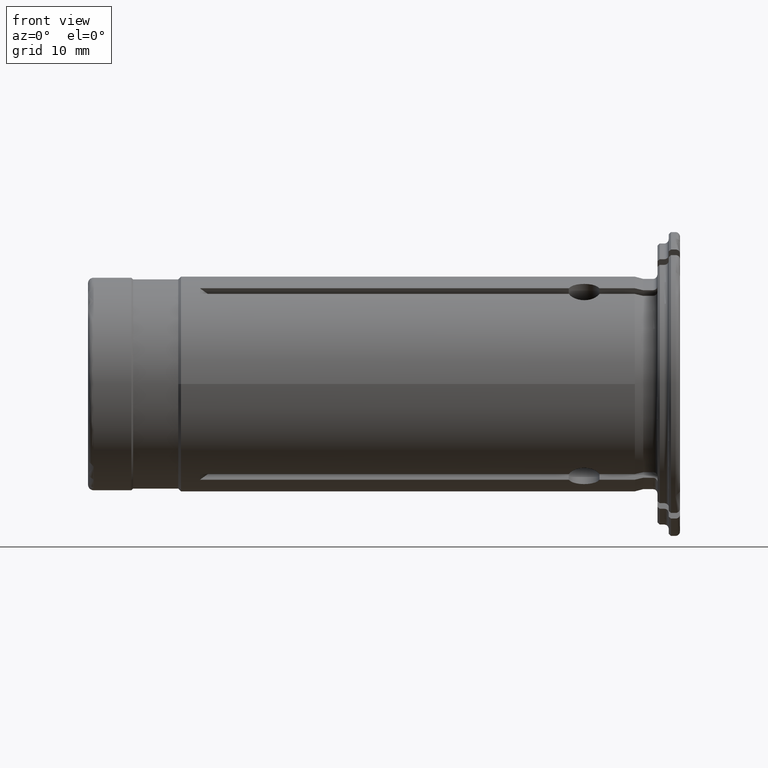
[diagram: clean part render]
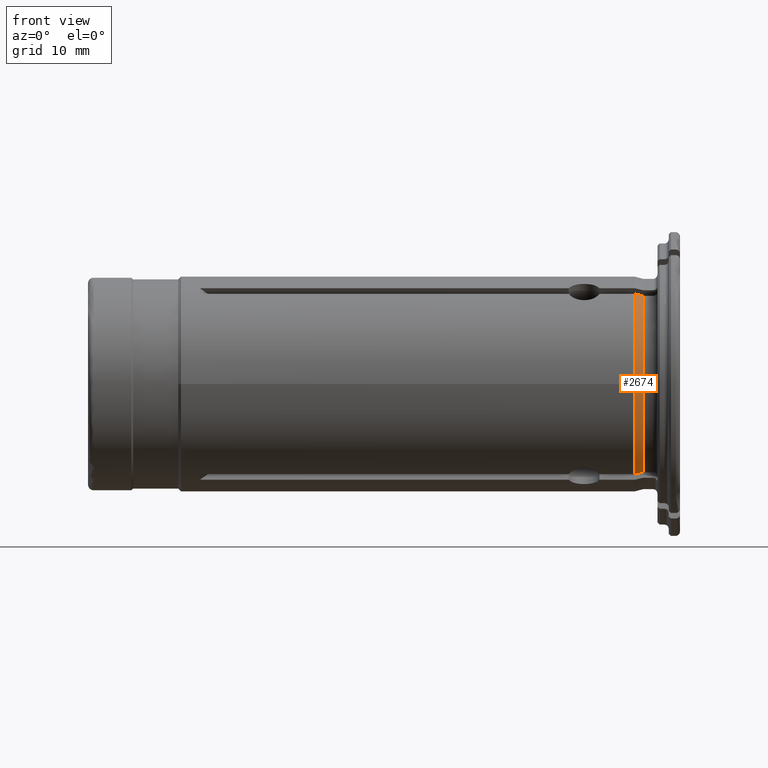
[diagram: same view with one face highlighted and labeled with its STEP entity id]
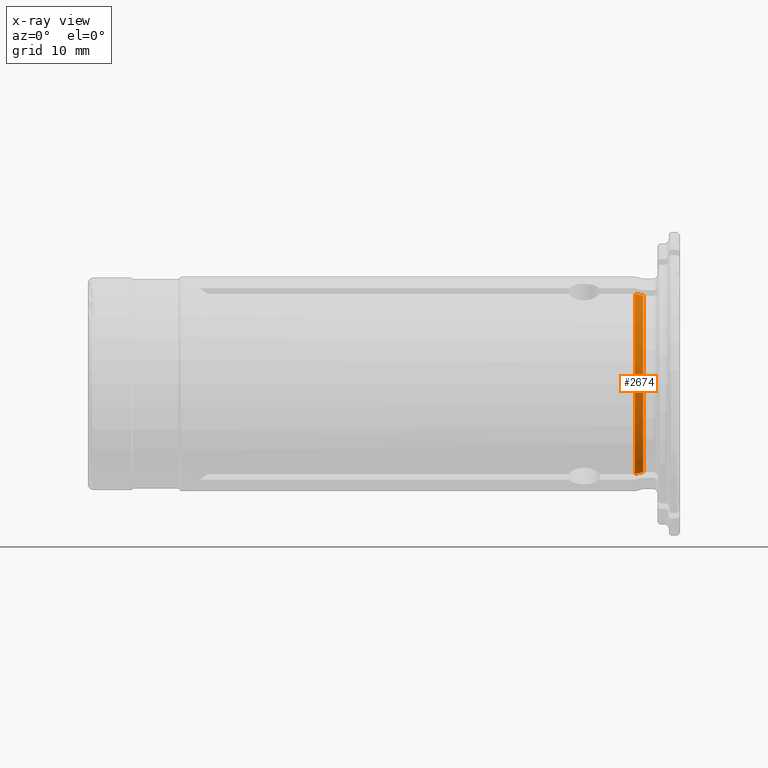
[diagram: x-ray of the same camera — body ghosted, the highlighted face saturated]
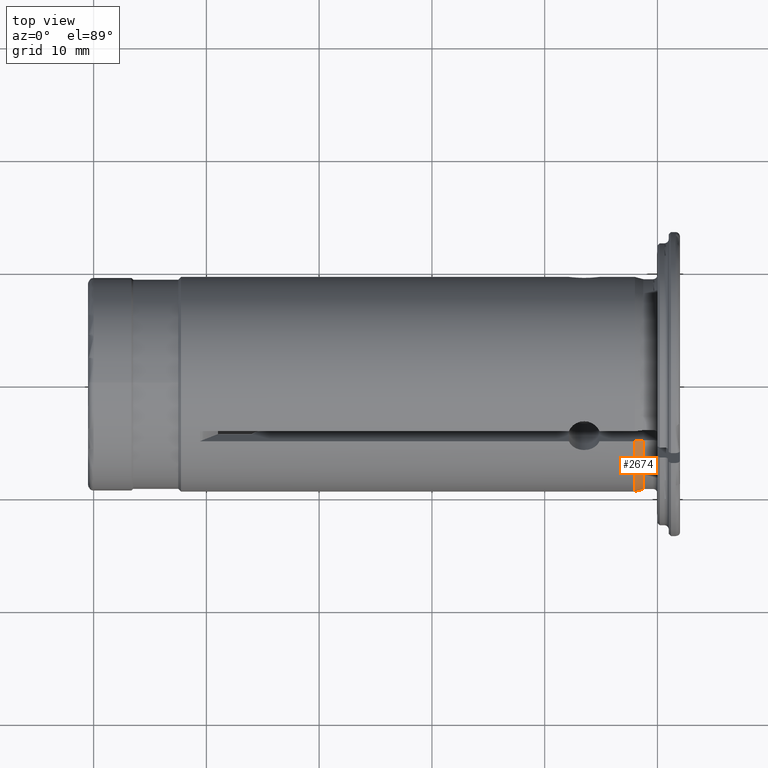
[diagram: same view with one face highlighted and labeled with its STEP entity id]
A machine part, front view. The second image highlights one B-rep face of the part: STEP entity #2674.
The next image is the same camera in x-ray: the body ghosted, the highlighted face saturated — about 0% of this face is hidden behind the body in this view.
A second angle (top view) of the same face is appended — the face is thin or edge-on in the first view.
In plain terms, the highlighted conical surface has half-angle 15 deg.
Its self-contained STEP definition (entity closure, byte-faithful):
#35=CARTESIAN_POINT('',(-2.E0,0.E0,0.E0));
#36=DIRECTION('',(1.E0,0.E0,0.E0));
#37=DIRECTION('',(0.E0,-5.447712856258E-1,8.385846685682E-1));
#38=AXIS2_PLACEMENT_3D('',#35,#36,#37);
#988=CARTESIAN_POINT('',(-1.253589838486E0,0.E0,0.E0));
#989=DIRECTION('',(-1.E0,0.E0,0.E0));
#990=DIRECTION('',(0.E0,-5.457164037187E-1,-8.379699318665E-1));
#991=AXIS2_PLACEMENT_3D('',#988,#989,#990);
#1024=CARTESIAN_POINT('',(-1.253589838486E0,-5.088805464677E0,
-7.814069614655E0));
#1025=CARTESIAN_POINT('',(-1.336339514354E0,-5.099907790334E0,
-7.833299406775E0));
#1026=CARTESIAN_POINT('',(-1.501962067298E0,-5.122128742919E0,
-7.871787225644E0));
#1027=CARTESIAN_POINT('',(-1.750766166225E0,-5.155509176439E0,
-7.929603832480E0));
#1028=CARTESIAN_POINT('',(-1.916881064836E0,-5.177795295304E0,
-7.968204522658E0));
#1029=CARTESIAN_POINT('',(-2.E0,-5.188946495586E0,-7.987518968112E0));
#1031=CARTESIAN_POINT('',(-2.E0,-5.188946495586E0,7.987518968112E0));
#1032=CARTESIAN_POINT('',(-1.916881714860E0,-5.177795382511E0,
7.968204673705E0));
#1033=CARTESIAN_POINT('',(-1.750767682953E0,-5.155509379926E0,
7.929604184930E0));
#1034=CARTESIAN_POINT('',(-1.501963584809E0,-5.122128946516E0,
7.871787578284E0));
#1035=CARTESIAN_POINT('',(-1.336340164719E0,-5.099907877592E0,
7.833299557910E0));
#1036=CARTESIAN_POINT('',(-1.253589838486E0,-5.088805464677E0,
7.814069614655E0));
#1137=CARTESIAN_POINT('',(-2.E0,0.E0,0.E0));
#1138=DIRECTION('',(1.E0,0.E0,0.E0));
#1139=DIRECTION('',(0.E0,-1.E0,0.E0));
#1140=AXIS2_PLACEMENT_3D('',#1137,#1138,#1139);
#1586=CARTESIAN_POINT('',(-2.E0,-9.525E0,0.E0));
#1587=VERTEX_POINT('',#1586);
#1695=CARTESIAN_POINT('',(-2.E0,-5.188946495586E0,7.987518968112E0));
#1697=VERTEX_POINT('',#1695);
#1769=VERTEX_POINT('',#1036);
#1805=CARTESIAN_POINT('',(-2.E0,-5.188946495586E0,-7.987518968112E0));
#1807=VERTEX_POINT('',#1805);
#1862=VERTEX_POINT('',#1024);
#2659=CARTESIAN_POINT('',(-1.626794919243E0,0.E0,0.E0));
#2660=DIRECTION('',(-1.E0,0.E0,0.E0));
#2661=DIRECTION('',(0.E0,1.E0,0.E0));
#2662=AXIS2_PLACEMENT_3D('',#2659,#2660,#2661);
#2663=CONICAL_SURFACE('',#2662,9.425E0,1.5E1);
#2665=ORIENTED_EDGE('',*,*,#2664,.T.);
#2667=ORIENTED_EDGE('',*,*,#2666,.F.);
#2668=ORIENTED_EDGE('',*,*,#1903,.F.);
#2670=ORIENTED_EDGE('',*,*,#2669,.T.);
#2671=ORIENTED_EDGE('',*,*,#2623,.F.);
#2672=EDGE_LOOP('',(#2665,#2667,#2668,#2670,#2671));
#2673=FACE_OUTER_BOUND('',#2672,.F.);
#2674=ADVANCED_FACE('',(#2673),#2663,.T.);
#39=CIRCLE('',#38,9.525E0);
#992=CIRCLE('',#991,9.325E0);
#1030=B_SPLINE_CURVE_WITH_KNOTS('',3,(#1024,#1025,#1026,#1027,#1028,#1029),
.UNSPECIFIED.,.F.,.F.,(4,1,1,4),(0.E0,3.333333333333E-1,6.666666666667E-1,1.E0),
.UNSPECIFIED.);
#1037=B_SPLINE_CURVE_WITH_KNOTS('',3,(#1031,#1032,#1033,#1034,#1035,#1036),
.UNSPECIFIED.,.F.,.F.,(4,1,1,4),(0.E0,3.333333333333E-1,6.666666666667E-1,1.E0),
.UNSPECIFIED.);
#1141=CIRCLE('',#1140,9.525E0);
#1903=EDGE_CURVE('',#1697,#1587,#39,.T.);
#2623=EDGE_CURVE('',#1862,#1769,#992,.T.);
#2664=EDGE_CURVE('',#1862,#1807,#1030,.T.);
#2666=EDGE_CURVE('',#1587,#1807,#1141,.T.);
#2669=EDGE_CURVE('',#1697,#1769,#1037,.T.);